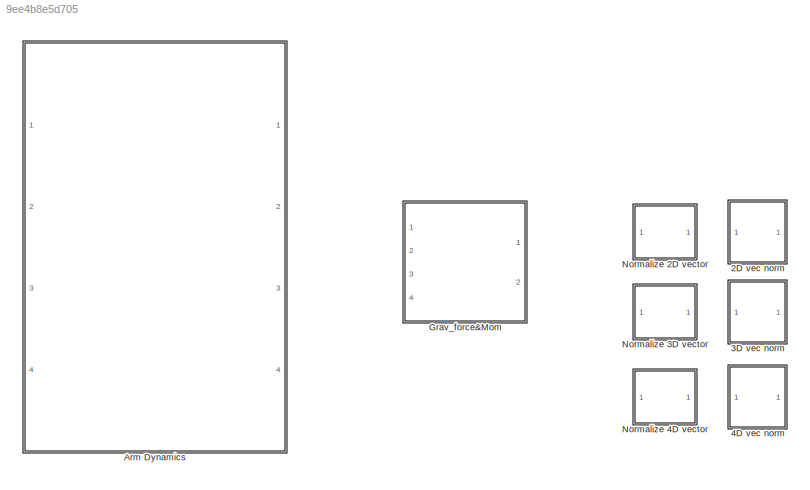
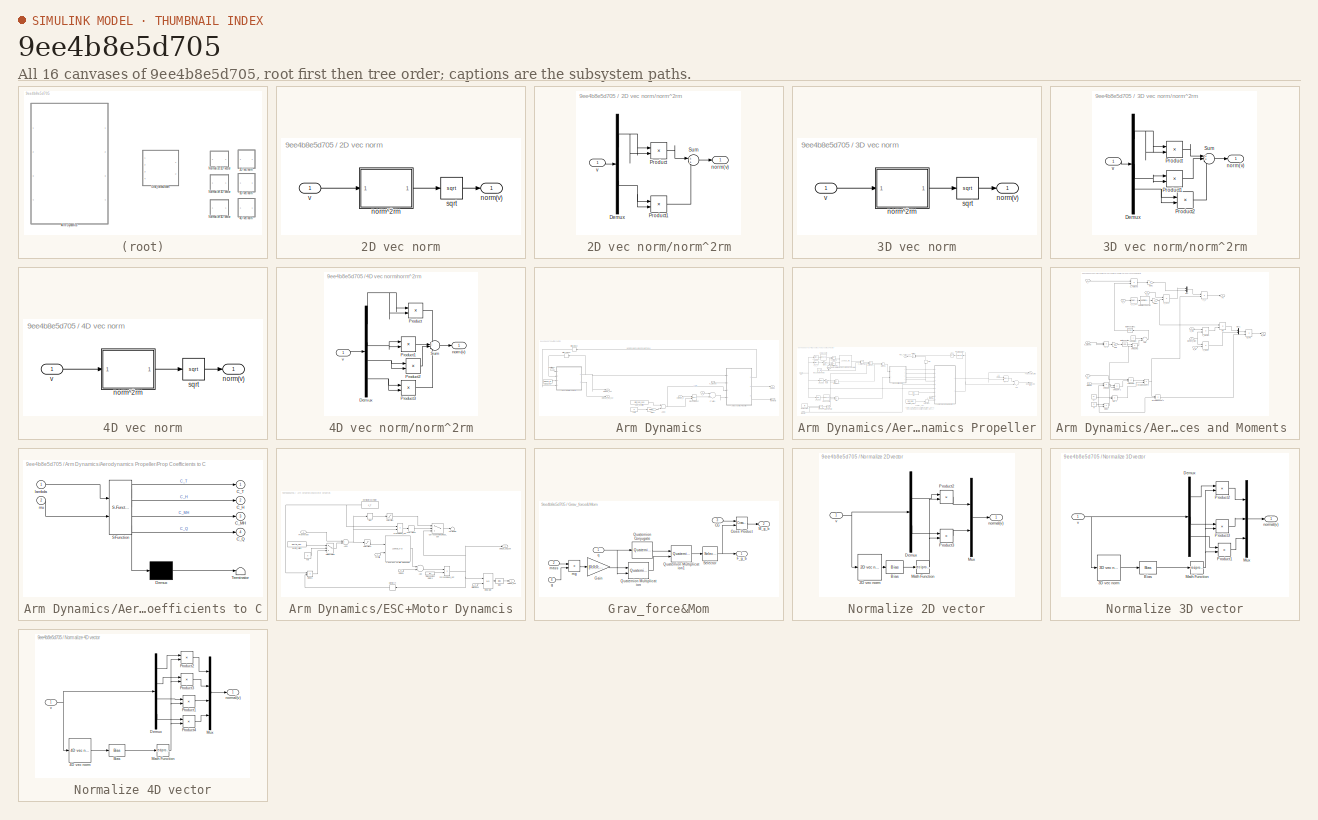
[diagram: thumbnail index - all 16 canvases of the model, root first then tree order]
MODEL slx_9ee4b8e5d705
KIND library
CONFIG AbsTol = auto
CONFIG FixedStep = auto
CONFIG MaxStep = auto
CONFIG MinStep = auto
CONFIG RelTol = 1e-3
CONFIG SampleTimeConstraint = Unconstrained
CONFIG Solver = ode45
CONFIG SolverMode = Auto
CONFIG SolverName = ode45
CONFIG StartTime = 0.0
CONFIG StopTime = 10.0
BLOCK [SubSystem] 2D vec norm
  Ports = [1, 1]
  RequestExecContextInheritance = off
  TreatAsAtomicUnit = on
BLOCK [Outport] 2D vec norm/norm(v)
  IconDisplay = Port number
BLOCK [SubSystem] 2D vec norm/norm^2rm
  Ports = [1, 1]
  RequestExecContextInheritance = off
  TreatAsAtomicUnit = on
BLOCK [Demux] 2D vec norm/norm^2rm/Demux
  DisplayOption = bar
  Outputs = 2
  Ports = [1, 2]
BLOCK [Product] 2D vec norm/norm^2rm/Product
  InputSameDT = off
  OutDataTypeStr = Inherit: Inherit via internal rule
  Ports = [2, 1]
  RndMeth = Floor
  SaturateOnIntegerOverflow = off
BLOCK [Product] 2D vec norm/norm^2rm/Product1
  InputSameDT = off
  OutDataTypeStr = Inherit: Inherit via internal rule
  Ports = [2, 1]
  RndMeth = Floor
  SaturateOnIntegerOverflow = off
BLOCK [Sum] 2D vec norm/norm^2rm/Sum
  IconShape = round
  InputSameDT = off
  Inputs = 2
  OutDataTypeStr = Inherit: Inherit via internal rule
  Ports = [2, 1]
  SaturateOnIntegerOverflow = off
BLOCK [Outport] 2D vec norm/norm^2rm/norm(v)
  IconDisplay = Port number
BLOCK [Inport] 2D vec norm/norm^2rm/v
  IconDisplay = Port number
BLOCK [Sqrt] 2D vec norm/sqrt
  AlgorithmType = Newton-Raphson
BLOCK [Inport] 2D vec norm/v
  IconDisplay = Port number
BLOCK [SubSystem] 3D vec norm
  Ports = [1, 1]
  RequestExecContextInheritance = off
  TreatAsAtomicUnit = on
BLOCK [Outport] 3D vec norm/norm(v)
  IconDisplay = Port number
BLOCK [SubSystem] 3D vec norm/norm^2rm
  Ports = [1, 1]
  RequestExecContextInheritance = off
  TreatAsAtomicUnit = on
BLOCK [Demux] 3D vec norm/norm^2rm/Demux
  DisplayOption = bar
  Outputs = 3
  Ports = [1, 3]
BLOCK [Product] 3D vec norm/norm^2rm/Product
  InputSameDT = off
  OutDataTypeStr = Inherit: Inherit via internal rule
  Ports = [2, 1]
  RndMeth = Floor
  SaturateOnIntegerOverflow = off
BLOCK [Product] 3D vec norm/norm^2rm/Product1
  InputSameDT = off
  OutDataTypeStr = Inherit: Inherit via internal rule
  Ports = [2, 1]
  RndMeth = Floor
  SaturateOnIntegerOverflow = off
BLOCK [Product] 3D vec norm/norm^2rm/Product2
  InputSameDT = off
  OutDataTypeStr = Inherit: Inherit via internal rule
  Ports = [2, 1]
  RndMeth = Floor
  SaturateOnIntegerOverflow = off
BLOCK [Sum] 3D vec norm/norm^2rm/Sum
  IconShape = round
  InputSameDT = off
  Inputs = 3
  OutDataTypeStr = Inherit: Inherit via internal rule
  Ports = [3, 1]
  SaturateOnIntegerOverflow = off
BLOCK [Outport] 3D vec norm/norm^2rm/norm(v)
  IconDisplay = Port number
BLOCK [Inport] 3D vec norm/norm^2rm/v
  IconDisplay = Port number
BLOCK [Sqrt] 3D vec norm/sqrt
  AlgorithmType = Newton-Raphson
BLOCK [Inport] 3D vec norm/v
  IconDisplay = Port number
BLOCK [SubSystem] 4D vec norm
  Ports = [1, 1]
  RequestExecContextInheritance = off
  TreatAsAtomicUnit = on
BLOCK [Outport] 4D vec norm/norm(v)
  IconDisplay = Port number
BLOCK [SubSystem] 4D vec norm/norm^2rm
  Ports = [1, 1]
  RequestExecContextInheritance = off
  TreatAsAtomicUnit = on
BLOCK [Demux] 4D vec norm/norm^2rm/Demux
  DisplayOption = bar
  Ports = [1, 4]
BLOCK [Product] 4D vec norm/norm^2rm/Product
  InputSameDT = off
  OutDataTypeStr = Inherit: Inherit via internal rule
  Ports = [2, 1]
  RndMeth = Floor
  SaturateOnIntegerOverflow = off
BLOCK [Product] 4D vec norm/norm^2rm/Product1
  InputSameDT = off
  OutDataTypeStr = Inherit: Inherit via internal rule
  Ports = [2, 1]
  RndMeth = Floor
  SaturateOnIntegerOverflow = off
BLOCK [Product] 4D vec norm/norm^2rm/Product2
  InputSameDT = off
  OutDataTypeStr = Inherit: Inherit via internal rule
  Ports = [2, 1]
  RndMeth = Floor
  SaturateOnIntegerOverflow = off
BLOCK [Product] 4D vec norm/norm^2rm/Product3
  InputSameDT = off
  OutDataTypeStr = Inherit: Inherit via internal rule
  Ports = [2, 1]
  RndMeth = Floor
  SaturateOnIntegerOverflow = off
BLOCK [Sum] 4D vec norm/norm^2rm/Sum
  IconShape = round
  InputSameDT = off
  Inputs = 4
  OutDataTypeStr = Inherit: Inherit via internal rule
  Ports = [4, 1]
  SaturateOnIntegerOverflow = off
BLOCK [Outport] 4D vec norm/norm^2rm/norm(v)
  IconDisplay = Port number
BLOCK [Inport] 4D vec norm/norm^2rm/v
  IconDisplay = Port number
BLOCK [Sqrt] 4D vec norm/sqrt
  AlgorithmType = Newton-Raphson
BLOCK [Inport] 4D vec norm/v
  IconDisplay = Port number
BLOCK [SubSystem] Arm Dynamics
  Ports = [4, 4]
  RequestExecContextInheritance = off
  TreatAsAtomicUnit = on
BLOCK [Sum] Arm Dynamics/Add3
  InputSameDT = off
  OutDataTypeStr = Inherit: Inherit via internal rule
  Ports = [2, 1]
  SaturateOnIntegerOverflow = off
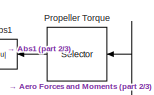
[diagram: Arm Dynamics/Aerodynamics Propeller - part 1/3, top right region]
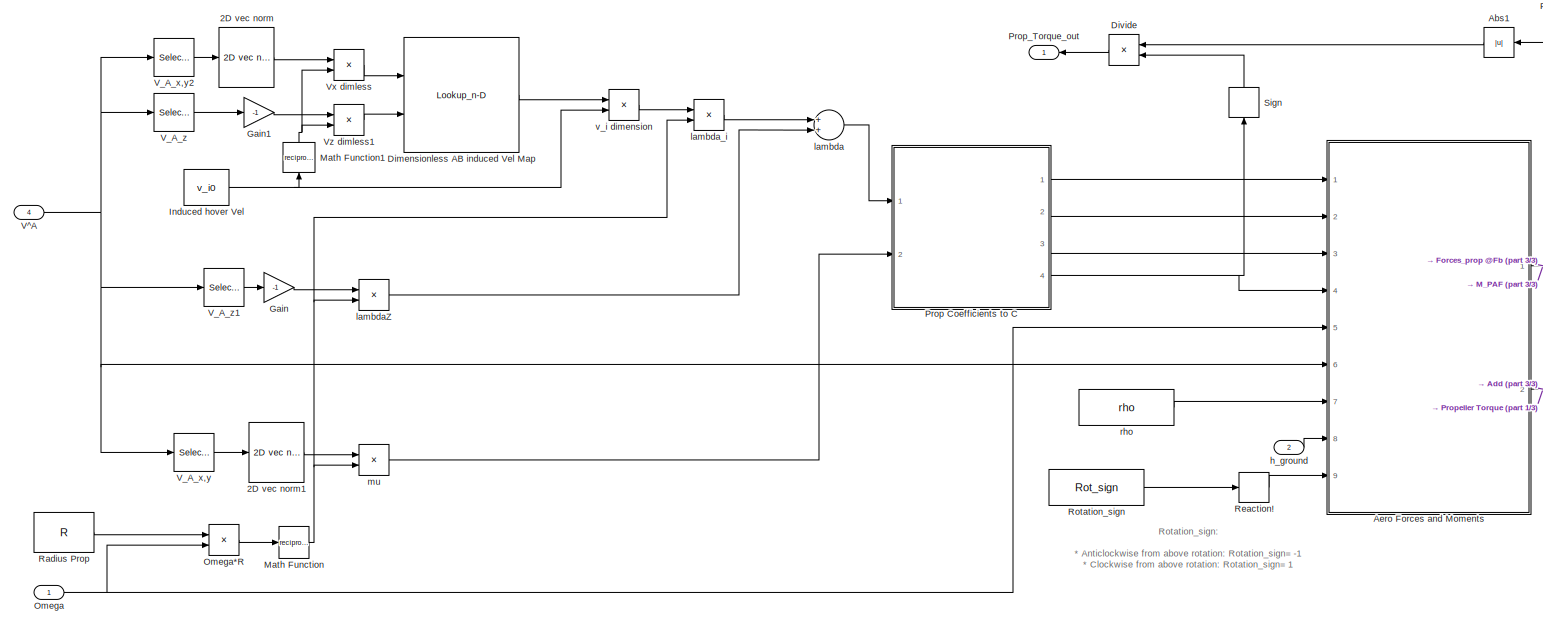
[diagram: Arm Dynamics/Aerodynamics Propeller - part 2/3, center side, full height]
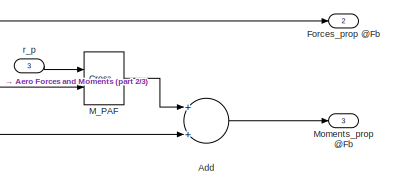
[diagram: Arm Dynamics/Aerodynamics Propeller - part 3/3, middle right region]
BLOCK [SubSystem] Arm Dynamics/Aerodynamics Propeller
  MinAlgLoopOccurrences = on
  Ports = [4, 3]
  RequestExecContextInheritance = off
  TreatAsAtomicUnit = on
BLOCK [Reference] Arm Dynamics/Aerodynamics Propeller/2D vec norm  REF=MCopter/2D vec norm
  Ports = [1, 1]
  SourceBlock = MCopter/2D vec norm
  SourceType = SubSystem
BLOCK [Reference] Arm Dynamics/Aerodynamics Propeller/2D vec norm1  REF=MCopter/2D vec norm
  Ports = [1, 1]
  SourceBlock = MCopter/2D vec norm
  SourceType = SubSystem
BLOCK [Abs] Arm Dynamics/Aerodynamics Propeller/Abs1
  SaturateOnIntegerOverflow = off
BLOCK [Sum] Arm Dynamics/Aerodynamics Propeller/Add
  InputSameDT = off
  OutDataTypeStr = Inherit: Inherit via internal rule
  Ports = [2, 1]
  SaturateOnIntegerOverflow = off
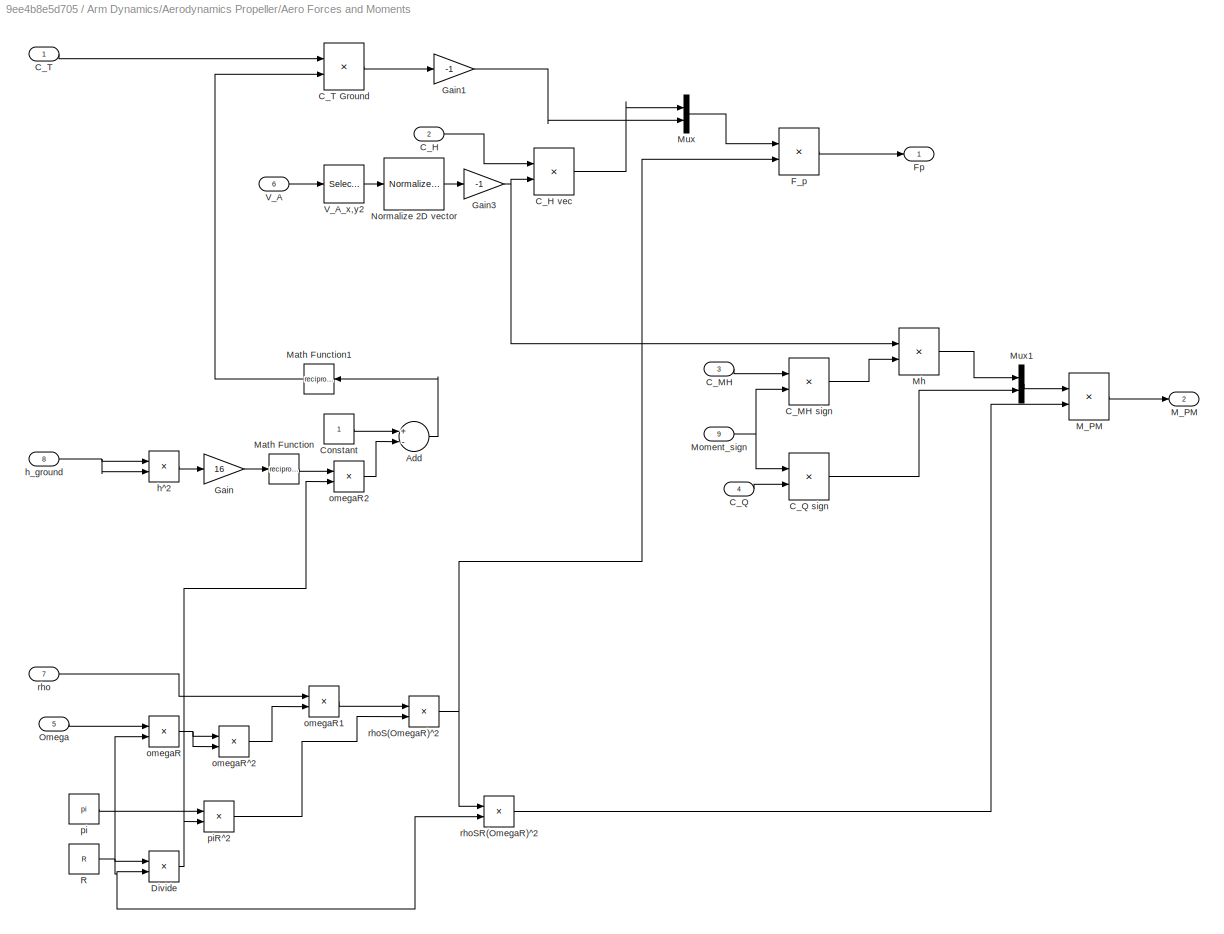
BLOCK [SubSystem] Arm Dynamics/Aerodynamics Propeller/Aero Forces and Moments 
  Ports = [9, 2]
  RequestExecContextInheritance = off
  TreatAsAtomicUnit = on
BLOCK [Sum] Arm Dynamics/Aerodynamics Propeller/Aero Forces and Moments /Add
  InputSameDT = off
  Inputs = +-
  OutDataTypeStr = Inherit: Inherit via internal rule
  Ports = [2, 1]
  SaturateOnIntegerOverflow = off
BLOCK [Inport] Arm Dynamics/Aerodynamics Propeller/Aero Forces and Moments /C_H
  IconDisplay = Port number
  Port = 2
BLOCK [Product] Arm Dynamics/Aerodynamics Propeller/Aero Forces and Moments /C_H vec
  InputSameDT = off
  Inputs = **
  OutDataTypeStr = Inherit: Inherit via internal rule
  Ports = [2, 1]
  RndMeth = Floor
  SaturateOnIntegerOverflow = off
BLOCK [Inport] Arm Dynamics/Aerodynamics Propeller/Aero Forces and Moments /C_MH
  IconDisplay = Port number
  Port = 3
BLOCK [Product] Arm Dynamics/Aerodynamics Propeller/Aero Forces and Moments /C_MH sign
  InputSameDT = off
  Inputs = **
  OutDataTypeStr = Inherit: Inherit via internal rule
  Ports = [2, 1]
  RndMeth = Floor
  SaturateOnIntegerOverflow = off
BLOCK [Inport] Arm Dynamics/Aerodynamics Propeller/Aero Forces and Moments /C_Q
  IconDisplay = Port number
  Port = 4
BLOCK [Product] Arm Dynamics/Aerodynamics Propeller/Aero Forces and Moments /C_Q sign
  InputSameDT = off
  Inputs = **
  OutDataTypeStr = Inherit: Inherit via internal rule
  Ports = [2, 1]
  RndMeth = Floor
  SaturateOnIntegerOverflow = off
BLOCK [Inport] Arm Dynamics/Aerodynamics Propeller/Aero Forces and Moments /C_T
  IconDisplay = Port number
BLOCK [Product] Arm Dynamics/Aerodynamics Propeller/Aero Forces and Moments /C_T Ground
  InputSameDT = off
  Inputs = **
  OutDataTypeStr = Inherit: Inherit via internal rule
  Ports = [2, 1]
  RndMeth = Floor
  SaturateOnIntegerOverflow = off
BLOCK [Constant] Arm Dynamics/Aerodynamics Propeller/Aero Forces and Moments /Constant
BLOCK [Product] Arm Dynamics/Aerodynamics Propeller/Aero Forces and Moments /Divide
  InputSameDT = off
  Inputs = **
  OutDataTypeStr = Inherit: Inherit via internal rule
  Ports = [2, 1]
  RndMeth = Floor
  SaturateOnIntegerOverflow = off
BLOCK [Product] Arm Dynamics/Aerodynamics Propeller/Aero Forces and Moments /F_p
  InputSameDT = off
  Inputs = **
  OutDataTypeStr = Inherit: Inherit via internal rule
  Ports = [2, 1]
  RndMeth = Floor
  SaturateOnIntegerOverflow = off
BLOCK [Outport] Arm Dynamics/Aerodynamics Propeller/Aero Forces and Moments /Fp
  IconDisplay = Port number
BLOCK [Gain] Arm Dynamics/Aerodynamics Propeller/Aero Forces and Moments /Gain
  Gain = 16
  OutDataTypeStr = Inherit: Inherit via internal rule
  ParamDataTypeStr = Inherit: Inherit via internal rule
  SaturateOnIntegerOverflow = off
BLOCK [Gain] Arm Dynamics/Aerodynamics Propeller/Aero Forces and Moments /Gain1
  Gain = -1
  OutDataTypeStr = Inherit: Inherit via internal rule
  ParamDataTypeStr = Inherit: Inherit via internal rule
  SaturateOnIntegerOverflow = off
BLOCK [Gain] Arm Dynamics/Aerodynamics Propeller/Aero Forces and Moments /Gain3
  Gain = -1
  OutDataTypeStr = Inherit: Inherit via internal rule
  ParamDataTypeStr = Inherit: Inherit via internal rule
  SaturateOnIntegerOverflow = off
BLOCK [Product] Arm Dynamics/Aerodynamics Propeller/Aero Forces and Moments /M_PM
  InputSameDT = off
  Inputs = **
  OutDataTypeStr = Inherit: Inherit via internal rule
  Ports = [2, 1]
  RndMeth = Floor
  SaturateOnIntegerOverflow = off
BLOCK [Outport] Arm Dynamics/Aerodynamics Propeller/Aero Forces and Moments /M_PM 
  IconDisplay = Port number
  Port = 2
BLOCK [Math] Arm Dynamics/Aerodynamics Propeller/Aero Forces and Moments /Math Function
  Operator = reciprocal
  Ports = [1, 1]
BLOCK [Math] Arm Dynamics/Aerodynamics Propeller/Aero Forces and Moments /Math Function1
  Operator = reciprocal
  Ports = [1, 1]
BLOCK [Product] Arm Dynamics/Aerodynamics Propeller/Aero Forces and Moments /Mh
  InputSameDT = off
  Inputs = **
  OutDataTypeStr = Inherit: Inherit via internal rule
  Ports = [2, 1]
  RndMeth = Floor
  SaturateOnIntegerOverflow = off
BLOCK [Inport] Arm Dynamics/Aerodynamics Propeller/Aero Forces and Moments /Moment_sign
  IconDisplay = Port number
  Port = 9
BLOCK [Mux] Arm Dynamics/Aerodynamics Propeller/Aero Forces and Moments /Mux
  DisplayOption = bar
  Inputs = [2,1]
  Ports = [2, 1]
BLOCK [Mux] Arm Dynamics/Aerodynamics Propeller/Aero Forces and Moments /Mux1
  DisplayOption = bar
  Inputs = [2,1]
  Ports = [2, 1]
BLOCK [Reference] Arm Dynamics/Aerodynamics Propeller/Aero Forces and Moments /Normalize 2D vector  REF=MCopter/Normalize 2D vector
  Ports = [1, 1]
  SourceBlock = MCopter/Normalize 2D vector
  SourceType = SubSystem
BLOCK [Inport] Arm Dynamics/Aerodynamics Propeller/Aero Forces and Moments /Omega
  IconDisplay = Port number
  Port = 5
BLOCK [Constant] Arm Dynamics/Aerodynamics Propeller/Aero Forces and Moments /R
  Value = R
BLOCK [Inport] Arm Dynamics/Aerodynamics Propeller/Aero Forces and Moments /V_A
  IconDisplay = Port number
  Port = 6
BLOCK [Selector] Arm Dynamics/Aerodynamics Propeller/Aero Forces and Moments /V_A_x,y2
  IndexMode = Zero-based
  Indices = [0,1]
  InputPortWidth = 3
  Ports = [1, 1]
BLOCK [Product] Arm Dynamics/Aerodynamics Propeller/Aero Forces and Moments /h^2
  InputSameDT = off
  Inputs = **
  OutDataTypeStr = Inherit: Inherit via internal rule
  Ports = [2, 1]
  RndMeth = Floor
  SaturateOnIntegerOverflow = off
BLOCK [Inport] Arm Dynamics/Aerodynamics Propeller/Aero Forces and Moments /h_ground
  IconDisplay = Port number
  Port = 8
BLOCK [Product] Arm Dynamics/Aerodynamics Propeller/Aero Forces and Moments /omegaR
  InputSameDT = off
  Inputs = **
  OutDataTypeStr = Inherit: Inherit via internal rule
  Ports = [2, 1]
  RndMeth = Floor
  SaturateOnIntegerOverflow = off
BLOCK [Product] Arm Dynamics/Aerodynamics Propeller/Aero Forces and Moments /omegaR1
  InputSameDT = off
  Inputs = **
  OutDataTypeStr = Inherit: Inherit via internal rule
  Ports = [2, 1]
  RndMeth = Floor
  SaturateOnIntegerOverflow = off
BLOCK [Product] Arm Dynamics/Aerodynamics Propeller/Aero Forces and Moments /omegaR2
  InputSameDT = off
  Inputs = **
  OutDataTypeStr = Inherit: Inherit via internal rule
  Ports = [2, 1]
  RndMeth = Floor
  SaturateOnIntegerOverflow = off
BLOCK [Product] Arm Dynamics/Aerodynamics Propeller/Aero Forces and Moments /omegaR^2
  InputSameDT = off
  Inputs = **
  OutDataTypeStr = Inherit: Inherit via internal rule
  Ports = [2, 1]
  RndMeth = Floor
  SaturateOnIntegerOverflow = off
BLOCK [Constant] Arm Dynamics/Aerodynamics Propeller/Aero Forces and Moments /pi
  Value = pi
BLOCK [Product] Arm Dynamics/Aerodynamics Propeller/Aero Forces and Moments /piR^2
  InputSameDT = off
  Inputs = **
  OutDataTypeStr = Inherit: Inherit via internal rule
  Ports = [2, 1]
  RndMeth = Floor
  SaturateOnIntegerOverflow = off
BLOCK [Inport] Arm Dynamics/Aerodynamics Propeller/Aero Forces and Moments /rho
  IconDisplay = Port number
  Port = 7
BLOCK [Product] Arm Dynamics/Aerodynamics Propeller/Aero Forces and Moments /rhoS(OmegaR)^2
  InputSameDT = off
  Inputs = **
  OutDataTypeStr = Inherit: Inherit via internal rule
  Ports = [2, 1]
  RndMeth = Floor
  SaturateOnIntegerOverflow = off
BLOCK [Product] Arm Dynamics/Aerodynamics Propeller/Aero Forces and Moments /rhoSR(OmegaR)^2
  InputSameDT = off
  Inputs = **
  OutDataTypeStr = Inherit: Inherit via internal rule
  Ports = [2, 1]
  RndMeth = Floor
  SaturateOnIntegerOverflow = off
BLOCK [Lookup_n-D] Arm Dynamics/Aerodynamics Propeller/Dimensionless AB induced Vel Map
  BreakpointsForDimension1 = Vx_adim
  BreakpointsForDimension2 = Vz_adim
  BreakpointsForDimension3 = [5, 7]
  ExtrapMethod = Clip
  FractionDataTypeStr = single
  IntermediateResultsDataTypeStr = single
  OutDataTypeStr = single
  Ports = [2, 1]
  RemoveProtectionInput = on
  RndMeth = Zero
  Table = v_i_adim
  TableDataTypeStr = single
BLOCK [Product] Arm Dynamics/Aerodynamics Propeller/Divide
  InputSameDT = off
  Inputs = **
  OutDataTypeStr = Inherit: Inherit via internal rule
  Ports = [2, 1]
  RndMeth = Floor
  SaturateOnIntegerOverflow = off
BLOCK [Outport] Arm Dynamics/Aerodynamics Propeller/Forces_prop @Fb
  IconDisplay = Port number
  Port = 2
BLOCK [Gain] Arm Dynamics/Aerodynamics Propeller/Gain
  Gain = -1
  OutDataTypeStr = Inherit: Inherit via internal rule
  ParamDataTypeStr = Inherit: Inherit via internal rule
  SaturateOnIntegerOverflow = off
BLOCK [Gain] Arm Dynamics/Aerodynamics Propeller/Gain1
  Gain = -1
  OutDataTypeStr = Inherit: Inherit via internal rule
  ParamDataTypeStr = Inherit: Inherit via internal rule
  SaturateOnIntegerOverflow = off
BLOCK [Constant] Arm Dynamics/Aerodynamics Propeller/Induced hover Vel
  Value = v_i0
BLOCK [Reference] Arm Dynamics/Aerodynamics Propeller/M_PAF  REF=vrlib/Utilities/Cross Product
  Ports = [2, 1]
  SourceBlock = vrlib/Utilities/Cross Product
  SourceType = Cross Product
BLOCK [Math] Arm Dynamics/Aerodynamics Propeller/Math Function
  Operator = reciprocal
  Ports = [1, 1]
BLOCK [Math] Arm Dynamics/Aerodynamics Propeller/Math Function1
  Operator = reciprocal
  Ports = [1, 1]
BLOCK [Outport] Arm Dynamics/Aerodynamics Propeller/Moments_prop @Fb
  IconDisplay = Port number
  Port = 3
BLOCK [Inport] Arm Dynamics/Aerodynamics Propeller/Omega
  IconDisplay = Port number
BLOCK [Product] Arm Dynamics/Aerodynamics Propeller/Omega*R
  InputSameDT = off
  Inputs = **
  OutDataTypeStr = Inherit: Inherit via internal rule
  Ports = [2, 1]
  RndMeth = Floor
  SaturateOnIntegerOverflow = off
BLOCK [SubSystem] Arm Dynamics/Aerodynamics Propeller/Prop Coefficients to C
  ErrorFcn = Stateflow.Translate.translate
  PermitHierarchicalResolution = ExplicitOnly
  Ports = [2, 4]
  RequestExecContextInheritance = off
  SFBlockType = MATLAB Function
  TreatAsAtomicUnit = on
BLOCK [Demux] Arm Dynamics/Aerodynamics Propeller/Prop Coefficients to C/ Demux 
  Outputs = 1
  Ports = [1, 1]
BLOCK [S-Function] Arm Dynamics/Aerodynamics Propeller/Prop Coefficients to C/ SFunction 
  FunctionName = sf_sfun
  Parameters = C_d0,a,sigma,theta_0,theta_1
  PortCounts = [2 5]
  Ports = [2, 5]
  Tag = Stateflow S-Function MCopter 17
BLOCK [Terminator] Arm Dynamics/Aerodynamics Propeller/Prop Coefficients to C/ Terminator 
BLOCK [Outport] Arm Dynamics/Aerodynamics Propeller/Prop Coefficients to C/C_H
  IconDisplay = Port number
  Port = 2
BLOCK [Outport] Arm Dynamics/Aerodynamics Propeller/Prop Coefficients to C/C_MH
  IconDisplay = Port number
  Port = 3
BLOCK [Outport] Arm Dynamics/Aerodynamics Propeller/Prop Coefficients to C/C_Q
  IconDisplay = Port number
  Port = 4
BLOCK [Outport] Arm Dynamics/Aerodynamics Propeller/Prop Coefficients to C/C_T
  IconDisplay = Port number
BLOCK [Inport] Arm Dynamics/Aerodynamics Propeller/Prop Coefficients to C/lambda
  IconDisplay = Port number
BLOCK [Inport] Arm Dynamics/Aerodynamics Propeller/Prop Coefficients to C/mu
  IconDisplay = Port number
  Port = 2
BLOCK [Outport] Arm Dynamics/Aerodynamics Propeller/Prop_Torque_out
  IconDisplay = Port number
BLOCK [Selector] Arm Dynamics/Aerodynamics Propeller/Propeller Torque
  IndexMode = Zero-based
  Indices = 2
  InputPortWidth = 3
  Ports = [1, 1]
BLOCK [Constant] Arm Dynamics/Aerodynamics Propeller/Radius Prop
  Value = R
BLOCK [UnaryMinus] Arm Dynamics/Aerodynamics Propeller/Reaction!
BLOCK [Constant] Arm Dynamics/Aerodynamics Propeller/Rotation_sign
  Value = Rot_sign
BLOCK [Signum] Arm Dynamics/Aerodynamics Propeller/Sign
BLOCK [Inport] Arm Dynamics/Aerodynamics Propeller/V^A
  IconDisplay = Port number
  Port = 4
BLOCK [Selector] Arm Dynamics/Aerodynamics Propeller/V_A_x,y
  IndexMode = Zero-based
  Indices = [0,1]
  InputPortWidth = 3
  Ports = [1, 1]
BLOCK [Selector] Arm Dynamics/Aerodynamics Propeller/V_A_x,y2
  IndexMode = Zero-based
  Indices = [0,1]
  InputPortWidth = 3
  Ports = [1, 1]
BLOCK [Selector] Arm Dynamics/Aerodynamics Propeller/V_A_z
  IndexMode = Zero-based
  Indices = 2
  InputPortWidth = 3
  Ports = [1, 1]
BLOCK [Selector] Arm Dynamics/Aerodynamics Propeller/V_A_z1
  IndexMode = Zero-based
  Indices = 2
  InputPortWidth = 3
  Ports = [1, 1]
BLOCK [Product] Arm Dynamics/Aerodynamics Propeller/Vx dimless
  InputSameDT = off
  Inputs = **
  OutDataTypeStr = Inherit: Inherit via internal rule
  Ports = [2, 1]
  RndMeth = Floor
  SaturateOnIntegerOverflow = off
BLOCK [Product] Arm Dynamics/Aerodynamics Propeller/Vz dimless1
  InputSameDT = off
  Inputs = **
  OutDataTypeStr = Inherit: Inherit via internal rule
  Ports = [2, 1]
  RndMeth = Floor
  SaturateOnIntegerOverflow = off
BLOCK [Inport] Arm Dynamics/Aerodynamics Propeller/h_ground
  IconDisplay = Port number
  Port = 2
BLOCK [Sum] Arm Dynamics/Aerodynamics Propeller/lambda
  InputSameDT = off
  OutDataTypeStr = Inherit: Inherit via internal rule
  Ports = [2, 1]
  SaturateOnIntegerOverflow = off
BLOCK [Product] Arm Dynamics/Aerodynamics Propeller/lambdaZ
  InputSameDT = off
  Inputs = **
  OutDataTypeStr = Inherit: Inherit via internal rule
  Ports = [2, 1]
  RndMeth = Floor
  SaturateOnIntegerOverflow = off
BLOCK [Product] Arm Dynamics/Aerodynamics Propeller/lambda_i
  InputSameDT = off
  Inputs = **
  OutDataTypeStr = Inherit: Inherit via internal rule
  Ports = [2, 1]
  RndMeth = Floor
  SaturateOnIntegerOverflow = off
BLOCK [Product] Arm Dynamics/Aerodynamics Propeller/mu
  InputSameDT = off
  Inputs = **
  OutDataTypeStr = Inherit: Inherit via internal rule
  Ports = [2, 1]
  RndMeth = Floor
  SaturateOnIntegerOverflow = off
BLOCK [Inport] Arm Dynamics/Aerodynamics Propeller/r_p
  IconDisplay = Port number
  Port = 3
BLOCK [Constant] Arm Dynamics/Aerodynamics Propeller/rho
  Value = rho
BLOCK [Product] Arm Dynamics/Aerodynamics Propeller/v_i dimension
  InputSameDT = off
  Inputs = **
  OutDataTypeStr = Inherit: Inherit via internal rule
  Ports = [2, 1]
  RndMeth = Floor
  SaturateOnIntegerOverflow = off
BLOCK [Reference] Arm Dynamics/Cross Product  REF=vrlib/Utilities/Cross Product
  Ports = [2, 1]
  SourceBlock = vrlib/Utilities/Cross Product
  SourceType = Cross Product
BLOCK [SubSystem] Arm Dynamics/ESC+Motor Dynamcis
  Ports = [4, 2]
  RequestExecContextInheritance = off
  TreatAsAtomicUnit = on
  VariantControl = Variant_completed
BLOCK [Lookup_n-D] Arm Dynamics/ESC+Motor Dynamcis/2-D Torque-Throttle-Omega Map
  BreakpointsForDimension1 = Torque_TTO(:,1)
  BreakpointsForDimension2 = Throtle_TTO(1,:)
  DiagnosticForOutOfRangeInput = Warning
  ExtrapMethod = Clip
  Ports = [2, 1]
  RemoveProtectionInput = on
  RndMeth = Simplest
  Table = Omega_TTO
BLOCK [Sum] Arm Dynamics/ESC+Motor Dynamcis/Add
  InputSameDT = off
  Inputs = +-
  OutDataTypeStr = Inherit: Inherit via internal rule
  Ports = [2, 1]
  SaturateOnIntegerOverflow = off
BLOCK [Sum] Arm Dynamics/ESC+Motor Dynamcis/Add1
  InputSameDT = off
  OutDataTypeStr = Inherit: Inherit via internal rule
  Ports = [2, 1]
  SaturateOnIntegerOverflow = off
BLOCK [Bias] Arm Dynamics/ESC+Motor Dynamcis/Bias
  Bias = eps
  SaturateOnIntegerOverflow = off
BLOCK [MultiPortSwitch] Arm Dynamics/ESC+Motor Dynamcis/Correspondetn Omega_dot
  DataPortOrder = Zero-based contiguous
  InputSameDT = off
  Inputs = 2
  Ports = [3, 1]
  SaturateOnIntegerOverflow = off
BLOCK [Product] Arm Dynamics/ESC+Motor Dynamcis/Divide1
  InputSameDT = off
  Inputs = **
  OutDataTypeStr = Inherit: Inherit via internal rule
  Ports = [2, 1]
  RndMeth = Floor
  SaturateOnIntegerOverflow = off
BLOCK [Product] Arm Dynamics/ESC+Motor Dynamcis/Forced Omega_dot
  InputSameDT = off
  Inputs = */
  OutDataTypeStr = Inherit: Inherit via internal rule
  Ports = [2, 1]
  RndMeth = Floor
  SaturateOnIntegerOverflow = off
BLOCK [Product] Arm Dynamics/ESC+Motor Dynamcis/Free Omega_dot
  InputSameDT = off
  Inputs = /*
  OutDataTypeStr = Inherit: Inherit via internal rule
  Ports = [2, 1]
  RndMeth = Floor
  SaturateOnIntegerOverflow = off
BLOCK [Constant] Arm Dynamics/ESC+Motor Dynamcis/Inertia of prop+motor
  Value = J_T
BLOCK [Inport] Arm Dynamics/ESC+Motor Dynamcis/Initial Omega
  IconDisplay = Port number
  Port = 3
BLOCK [Integrator] Arm Dynamics/ESC+Motor Dynamcis/Integrator
  InitialConditionSource = external
  Ports = [2, 1]
BLOCK [Memory] Arm Dynamics/ESC+Motor Dynamcis/Memory4
BLOCK [MultiPortSwitch] Arm Dynamics/ESC+Motor Dynamcis/Multiport Switch
  InputSameDT = off
  Inputs = 2
  Ports = [3, 1]
  SaturateOnIntegerOverflow = off
BLOCK [Inport] Arm Dynamics/ESC+Motor Dynamcis/Omega
  IconDisplay = Port number
  Port = 2
BLOCK [Outport] Arm Dynamics/ESC+Motor Dynamcis/Omega_dot_out
  IconDisplay = Port number
  Port = 2
BLOCK [Outport] Arm Dynamics/ESC+Motor Dynamcis/Omega_out
  IconDisplay = Port number
BLOCK [Inport] Arm Dynamics/ESC+Motor Dynamcis/Prop Torque
  IconDisplay = Port number
  Port = 4
BLOCK [Saturate] Arm Dynamics/ESC+Motor Dynamcis/Saturation
  InputPortMap = u0
  LowerLimit = 0
  Ports = [1, 1]
  UpperLimit = 1
BLOCK [Saturate] Arm Dynamics/ESC+Motor Dynamcis/Saturation1
  InputPortMap = u0
  LowerLimit = 0
  Ports = [1, 1]
  UpperLimit = inf
BLOCK [Signum] Arm Dynamics/ESC+Motor Dynamcis/Sign
BLOCK [Terminator] Arm Dynamics/ESC+Motor Dynamcis/Terminator
BLOCK [Inport] Arm Dynamics/ESC+Motor Dynamcis/Throttle
  IconDisplay = Port number
BLOCK [Constant] Arm Dynamics/ESC+Motor Dynamcis/Time constant motors
  Value = tau
BLOCK [UnaryMinus] Arm Dynamics/ESC+Motor Dynamcis/Unary Minus
BLOCK [Constant] Arm Dynamics/ESC+Motor Dynamcis/inertia_switch
  Value = inertia_switch
BLOCK [Constant] Arm Dynamics/ESC+Motor Dynamcis/null
  Value = 0
BLOCK [Outport] Arm Dynamics/Forces
  IconDisplay = Port number
BLOCK [Gain] Arm Dynamics/Gain7
  Gain = [0;0;-1]
  OutDataTypeStr = Inherit: Inherit via internal rule
  ParamDataTypeStr = Inherit: Inherit via internal rule
  SaturateOnIntegerOverflow = off
BLOCK [Constant] Arm Dynamics/Hub_position
  Value = arm_hub_pos
BLOCK [Memory] Arm Dynamics/Initial_torque
  X0 = Torq_ini
BLOCK [Outport] Arm Dynamics/Moments
  IconDisplay = Port number
  Port = 2
BLOCK [Outport] Arm Dynamics/Omega_dot_out
  IconDisplay = Port number
  Port = 4
BLOCK [Outport] Arm Dynamics/Omega_out
  IconDisplay = Port number
  Port = 3
BLOCK [Inport] Arm Dynamics/Throttle [0-1]
  IconDisplay = Port number
BLOCK [Sum] Arm Dynamics/V^A (m//s)
  InputSameDT = off
  OutDataTypeStr = Inherit: Inherit via internal rule
  Ports = [2, 1]
  SaturateOnIntegerOverflow = off
BLOCK [Inport] Arm Dynamics/V_b
  IconDisplay = Port number
  Port = 4
BLOCK [Constant] Arm Dynamics/h arm
  Value = h
BLOCK [Inport] Arm Dynamics/h_ground
  IconDisplay = Port number
  Port = 2
BLOCK [Memory] Arm Dynamics/initial_omega
  X0 = Omega_ini
BLOCK [Inport] Arm Dynamics/omega_b
  IconDisplay = Port number
  Port = 3
BLOCK [Constant] Arm Dynamics/omega_ini
  Value = Omega_ini
BLOCK [SubSystem] Grav_force&Mom
  Ports = [4, 2]
  RequestExecContextInheritance = off
  TreatAsAtomicUnit = on
BLOCK [Inport] Grav_force&Mom/CG
  IconDisplay = Port number
  Port = 3
BLOCK [Reference] Grav_force&Mom/Cross Product  REF=vrlib/Utilities/Cross Product
  Ports = [2, 1]
  SourceBlock = vrlib/Utilities/Cross Product
  SourceType = Cross Product
BLOCK [Outport] Grav_force&Mom/F_g_b
  IconDisplay = Port number
BLOCK [Gain] Grav_force&Mom/Gain
  Gain = [0;0;0;1]
  OutDataTypeStr = Inherit: Inherit via internal rule
  ParamDataTypeStr = Inherit: Inherit via internal rule
  SaturateOnIntegerOverflow = off
BLOCK [Outport] Grav_force&Mom/M_g_b
  IconDisplay = Port number
  Port = 2
BLOCK [Reference] Grav_force&Mom/Quaternion Conjugate  REF=aerolibutil/Quaternion
Conjugate
  Ports = [1, 1]
  SourceBlock = aerolibutil/Quaternion\nConjugate
  SourceType = Quaternion Conjugate
BLOCK [Reference] Grav_force&Mom/Quaternion Multiplication  REF=aerolibutil/Quaternion
Multiplication
  Ports = [2, 1]
  SourceBlock = aerolibutil/Quaternion\nMultiplication
  SourceType = Quaternion Multiplication
BLOCK [Reference] Grav_force&Mom/Quaternion Multiplication1  REF=aerolibutil/Quaternion
Multiplication
  Ports = [2, 1]
  SourceBlock = aerolibutil/Quaternion\nMultiplication
  SourceType = Quaternion Multiplication
BLOCK [Selector] Grav_force&Mom/Selector
  IndexMode = Zero-based
  Indices = [1:3]
  InputPortWidth = 4
  Ports = [1, 1]
BLOCK [Inport] Grav_force&Mom/g
  IconDisplay = Port number
  Port = 4
BLOCK [Inport] Grav_force&Mom/mass
  IconDisplay = Port number
  Port = 2
BLOCK [Product] Grav_force&Mom/mg
  InputSameDT = off
  OutDataTypeStr = Inherit: Inherit via internal rule
  Ports = [2, 1]
  SaturateOnIntegerOverflow = off
BLOCK [Inport] Grav_force&Mom/q
  IconDisplay = Port number
BLOCK [SubSystem] Normalize 2D vector
  Ports = [1, 1]
  RequestExecContextInheritance = off
  TreatAsAtomicUnit = on
BLOCK [Reference] Normalize 2D vector/2D vec norm  REF=MCopter/2D vec norm
  Ports = [1, 1]
  SourceBlock = MCopter/2D vec norm
  SourceType = SubSystem
BLOCK [Bias] Normalize 2D vector/Bias
  Bias = eps
  SaturateOnIntegerOverflow = off
BLOCK [Demux] Normalize 2D vector/Demux
  DisplayOption = bar
  Outputs = 2
  Ports = [1, 2]
BLOCK [Math] Normalize 2D vector/Math Function
  Operator = reciprocal
  Ports = [1, 1]
BLOCK [Mux] Normalize 2D vector/Mux
  DisplayOption = bar
  Inputs = 2
  Ports = [2, 1]
BLOCK [Product] Normalize 2D vector/Product2
  InputSameDT = off
  Inputs = **
  OutDataTypeStr = Inherit: Inherit via internal rule
  Ports = [2, 1]
  RndMeth = Floor
  SaturateOnIntegerOverflow = off
BLOCK [Product] Normalize 2D vector/Product3
  InputSameDT = off
  Inputs = **
  OutDataTypeStr = Inherit: Inherit via internal rule
  Ports = [2, 1]
  RndMeth = Floor
  SaturateOnIntegerOverflow = off
BLOCK [Outport] Normalize 2D vector/normal(v)
  IconDisplay = Port number
BLOCK [Inport] Normalize 2D vector/v
  IconDisplay = Port number
BLOCK [SubSystem] Normalize 3D vector
  Ports = [1, 1]
  RequestExecContextInheritance = off
  TreatAsAtomicUnit = on
BLOCK [Reference] Normalize 3D vector/3D vec norm  REF=MCopter/3D vec norm
  Ports = [1, 1]
  SourceBlock = MCopter/3D vec norm
  SourceType = SubSystem
BLOCK [Bias] Normalize 3D vector/Bias
  Bias = eps
  SaturateOnIntegerOverflow = off
BLOCK [Demux] Normalize 3D vector/Demux
  DisplayOption = bar
  Outputs = 3
  Ports = [1, 3]
BLOCK [Math] Normalize 3D vector/Math Function
  Operator = reciprocal
  Ports = [1, 1]
BLOCK [Mux] Normalize 3D vector/Mux
  DisplayOption = bar
  Inputs = 3
  Ports = [3, 1]
BLOCK [Product] Normalize 3D vector/Product1
  InputSameDT = off
  Inputs = **
  OutDataTypeStr = Inherit: Inherit via internal rule
  Ports = [2, 1]
  RndMeth = Floor
  SaturateOnIntegerOverflow = off
BLOCK [Product] Normalize 3D vector/Product2
  InputSameDT = off
  Inputs = **
  OutDataTypeStr = Inherit: Inherit via internal rule
  Ports = [2, 1]
  RndMeth = Floor
  SaturateOnIntegerOverflow = off
BLOCK [Product] Normalize 3D vector/Product3
  InputSameDT = off
  Inputs = **
  OutDataTypeStr = Inherit: Inherit via internal rule
  Ports = [2, 1]
  RndMeth = Floor
  SaturateOnIntegerOverflow = off
BLOCK [Outport] Normalize 3D vector/normal(v)
  IconDisplay = Port number
BLOCK [Inport] Normalize 3D vector/v
  IconDisplay = Port number
BLOCK [SubSystem] Normalize 4D vector
  Ports = [1, 1]
  RequestExecContextInheritance = off
  TreatAsAtomicUnit = on
BLOCK [Reference] Normalize 4D vector/4D vec norm  REF=MCopter/4D vec norm
  Ports = [1, 1]
  SourceBlock = MCopter/4D vec norm
  SourceType = SubSystem
BLOCK [Bias] Normalize 4D vector/Bias
  Bias = eps
  SaturateOnIntegerOverflow = off
BLOCK [Demux] Normalize 4D vector/Demux
  DisplayOption = bar
  Ports = [1, 4]
BLOCK [Math] Normalize 4D vector/Math Function
  Operator = reciprocal
  Ports = [1, 1]
BLOCK [Mux] Normalize 4D vector/Mux
  DisplayOption = bar
  Ports = [4, 1]
BLOCK [Product] Normalize 4D vector/Product1
  InputSameDT = off
  Inputs = **
  OutDataTypeStr = Inherit: Inherit via internal rule
  Ports = [2, 1]
  RndMeth = Floor
  SaturateOnIntegerOverflow = off
BLOCK [Product] Normalize 4D vector/Product2
  InputSameDT = off
  Inputs = **
  OutDataTypeStr = Inherit: Inherit via internal rule
  Ports = [2, 1]
  RndMeth = Floor
  SaturateOnIntegerOverflow = off
BLOCK [Product] Normalize 4D vector/Product3
  InputSameDT = off
  Inputs = **
  OutDataTypeStr = Inherit: Inherit via internal rule
  Ports = [2, 1]
  RndMeth = Floor
  SaturateOnIntegerOverflow = off
BLOCK [Product] Normalize 4D vector/Product4
  InputSameDT = off
  Inputs = **
  OutDataTypeStr = Inherit: Inherit via internal rule
  Ports = [2, 1]
  RndMeth = Floor
  SaturateOnIntegerOverflow = off
BLOCK [Outport] Normalize 4D vector/normal(v)
  IconDisplay = Port number
BLOCK [Inport] Normalize 4D vector/v
  IconDisplay = Port number
ANNOTATION Arm Dynamics: Motor-Propeller Coupling: Propeller Torque
ANNOTATION Arm Dynamics/Aerodynamics Propeller: Rotation_sign: * Anticlockwise from above rotation: Rotation_sign= -1 * Clockwise from above rotation: Rotation_sign= 1
NET 2D vec norm/norm^2rm/Demux:1 -> 2D vec norm/norm^2rm/Product:1, 2D vec norm/norm^2rm/Product:2
NET 2D vec norm/norm^2rm/Demux:2 -> 2D vec norm/norm^2rm/Product1:1, 2D vec norm/norm^2rm/Product1:2
LINE 2D vec norm/norm^2rm/Product1:1 -> 2D vec norm/norm^2rm/Sum:2
LINE 2D vec norm/norm^2rm/Product:1 -> 2D vec norm/norm^2rm/Sum:1
LINE 2D vec norm/norm^2rm/Sum:1 -> 2D vec norm/norm^2rm/norm(v):1
LINE 2D vec norm/norm^2rm/v:1 -> 2D vec norm/norm^2rm/Demux:1
LINE 2D vec norm/norm^2rm:1 -> 2D vec norm/sqrt:1
LINE 2D vec norm/sqrt:1 -> 2D vec norm/norm(v):1
LINE 2D vec norm/v:1 -> 2D vec norm/norm^2rm:1
NET 3D vec norm/norm^2rm/Demux:1 -> 3D vec norm/norm^2rm/Product:1, 3D vec norm/norm^2rm/Product:2
NET 3D vec norm/norm^2rm/Demux:2 -> 3D vec norm/norm^2rm/Product1:1, 3D vec norm/norm^2rm/Product1:2
NET 3D vec norm/norm^2rm/Demux:3 -> 3D vec norm/norm^2rm/Product2:1, 3D vec norm/norm^2rm/Product2:2
LINE 3D vec norm/norm^2rm/Product1:1 -> 3D vec norm/norm^2rm/Sum:2
LINE 3D vec norm/norm^2rm/Product2:1 -> 3D vec norm/norm^2rm/Sum:3
LINE 3D vec norm/norm^2rm/Product:1 -> 3D vec norm/norm^2rm/Sum:1
LINE 3D vec norm/norm^2rm/Sum:1 -> 3D vec norm/norm^2rm/norm(v):1
LINE 3D vec norm/norm^2rm/v:1 -> 3D vec norm/norm^2rm/Demux:1
LINE 3D vec norm/norm^2rm:1 -> 3D vec norm/sqrt:1
LINE 3D vec norm/sqrt:1 -> 3D vec norm/norm(v):1
LINE 3D vec norm/v:1 -> 3D vec norm/norm^2rm:1
NET 4D vec norm/norm^2rm/Demux:1 -> 4D vec norm/norm^2rm/Product:1, 4D vec norm/norm^2rm/Product:2
NET 4D vec norm/norm^2rm/Demux:2 -> 4D vec norm/norm^2rm/Product1:1, 4D vec norm/norm^2rm/Product1:2
NET 4D vec norm/norm^2rm/Demux:3 -> 4D vec norm/norm^2rm/Product2:1, 4D vec norm/norm^2rm/Product2:2
NET 4D vec norm/norm^2rm/Demux:4 -> 4D vec norm/norm^2rm/Product3:1, 4D vec norm/norm^2rm/Product3:2
LINE 4D vec norm/norm^2rm/Product1:1 -> 4D vec norm/norm^2rm/Sum:2
LINE 4D vec norm/norm^2rm/Product2:1 -> 4D vec norm/norm^2rm/Sum:3
LINE 4D vec norm/norm^2rm/Product3:1 -> 4D vec norm/norm^2rm/Sum:4
LINE 4D vec norm/norm^2rm/Product:1 -> 4D vec norm/norm^2rm/Sum:1
LINE 4D vec norm/norm^2rm/Sum:1 -> 4D vec norm/norm^2rm/norm(v):1
LINE 4D vec norm/norm^2rm/v:1 -> 4D vec norm/norm^2rm/Demux:1
LINE 4D vec norm/norm^2rm:1 -> 4D vec norm/sqrt:1
LINE 4D vec norm/sqrt:1 -> 4D vec norm/norm(v):1
LINE 4D vec norm/v:1 -> 4D vec norm/norm^2rm:1
NET Arm Dynamics/Add3:1 -> Arm Dynamics/Aerodynamics Propeller:3, Arm Dynamics/Cross Product:2
LINE Arm Dynamics/Aerodynamics Propeller/2D vec norm1:1 -> Arm Dynamics/Aerodynamics Propeller/mu:1
LINE Arm Dynamics/Aerodynamics Propeller/2D vec norm:1 -> Arm Dynamics/Aerodynamics Propeller/Vx dimless:1
LINE Arm Dynamics/Aerodynamics Propeller/Abs1:1 -> Arm Dynamics/Aerodynamics Propeller/Divide:1
LINE Arm Dynamics/Aerodynamics Propeller/Add:1 -> Arm Dynamics/Aerodynamics Propeller/Moments_prop @Fb:1
LINE Arm Dynamics/Aerodynamics Propeller/Aero Forces and Moments /Add:1 -> Arm Dynamics/Aerodynamics Propeller/Aero Forces and Moments /Math Function1:1
LINE Arm Dynamics/Aerodynamics Propeller/Aero Forces and Moments /C_H vec:1 -> Arm Dynamics/Aerodynamics Propeller/Aero Forces and Moments /Mux:1
LINE Arm Dynamics/Aerodynamics Propeller/Aero Forces and Moments /C_H:1 -> Arm Dynamics/Aerodynamics Propeller/Aero Forces and Moments /C_H vec:1
LINE Arm Dynamics/Aerodynamics Propeller/Aero Forces and Moments /C_MH sign:1 -> Arm Dynamics/Aerodynamics Propeller/Aero Forces and Moments /Mh:2
LINE Arm Dynamics/Aerodynamics Propeller/Aero Forces and Moments /C_MH:1 -> Arm Dynamics/Aerodynamics Propeller/Aero Forces and Moments /C_MH sign:1
LINE Arm Dynamics/Aerodynamics Propeller/Aero Forces and Moments /C_Q sign:1 -> Arm Dynamics/Aerodynamics Propeller/Aero Forces and Moments /Mux1:2
LINE Arm Dynamics/Aerodynamics Propeller/Aero Forces and Moments /C_Q:1 -> Arm Dynamics/Aerodynamics Propeller/Aero Forces and Moments /C_Q sign:2
LINE Arm Dynamics/Aerodynamics Propeller/Aero Forces and Moments /C_T Ground:1 -> Arm Dynamics/Aerodynamics Propeller/Aero Forces and Moments /Gain1:1
LINE Arm Dynamics/Aerodynamics Propeller/Aero Forces and Moments /C_T:1 -> Arm Dynamics/Aerodynamics Propeller/Aero Forces and Moments /C_T Ground:1
LINE Arm Dynamics/Aerodynamics Propeller/Aero Forces and Moments /Constant:1 -> Arm Dynamics/Aerodynamics Propeller/Aero Forces and Moments /Add:1
NET Arm Dynamics/Aerodynamics Propeller/Aero Forces and Moments /Divide:1 -> Arm Dynamics/Aerodynamics Propeller/Aero Forces and Moments /omegaR2:2, Arm Dynamics/Aerodynamics Propeller/Aero Forces and Moments /piR^2:2
LINE Arm Dynamics/Aerodynamics Propeller/Aero Forces and Moments /F_p:1 -> Arm Dynamics/Aerodynamics Propeller/Aero Forces and Moments /Fp:1
LINE Arm Dynamics/Aerodynamics Propeller/Aero Forces and Moments /Gain1:1 -> Arm Dynamics/Aerodynamics Propeller/Aero Forces and Moments /Mux:2
NET Arm Dynamics/Aerodynamics Propeller/Aero Forces and Moments /Gain3:1 -> Arm Dynamics/Aerodynamics Propeller/Aero Forces and Moments /C_H vec:2, Arm Dynamics/Aerodynamics Propeller/Aero Forces and Moments /Mh:1
LINE Arm Dynamics/Aerodynamics Propeller/Aero Forces and Moments /Gain:1 -> Arm Dynamics/Aerodynamics Propeller/Aero Forces and Moments /Math Function:1
LINE Arm Dynamics/Aerodynamics Propeller/Aero Forces and Moments /M_PM:1 -> Arm Dynamics/Aerodynamics Propeller/Aero Forces and Moments /M_PM :1
LINE Arm Dynamics/Aerodynamics Propeller/Aero Forces and Moments /Math Function1:1 -> Arm Dynamics/Aerodynamics Propeller/Aero Forces and Moments /C_T Ground:2
LINE Arm Dynamics/Aerodynamics Propeller/Aero Forces and Moments /Math Function:1 -> Arm Dynamics/Aerodynamics Propeller/Aero Forces and Moments /omegaR2:1
LINE Arm Dynamics/Aerodynamics Propeller/Aero Forces and Moments /Mh:1 -> Arm Dynamics/Aerodynamics Propeller/Aero Forces and Moments /Mux1:1
NET Arm Dynamics/Aerodynamics Propeller/Aero Forces and Moments /Moment_sign:1 -> Arm Dynamics/Aerodynamics Propeller/Aero Forces and Moments /C_MH sign:2, Arm Dynamics/Aerodynamics Propeller/Aero Forces and Moments /C_Q sign:1
LINE Arm Dynamics/Aerodynamics Propeller/Aero Forces and Moments /Mux1:1 -> Arm Dynamics/Aerodynamics Propeller/Aero Forces and Moments /M_PM:1
LINE Arm Dynamics/Aerodynamics Propeller/Aero Forces and Moments /Mux:1 -> Arm Dynamics/Aerodynamics Propeller/Aero Forces and Moments /F_p:1
LINE Arm Dynamics/Aerodynamics Propeller/Aero Forces and Moments /Normalize 2D vector:1 -> Arm Dynamics/Aerodynamics Propeller/Aero Forces and Moments /Gain3:1
LINE Arm Dynamics/Aerodynamics Propeller/Aero Forces and Moments /Omega:1 -> Arm Dynamics/Aerodynamics Propeller/Aero Forces and Moments /omegaR:1
NET Arm Dynamics/Aerodynamics Propeller/Aero Forces and Moments /R:1 -> Arm Dynamics/Aerodynamics Propeller/Aero Forces and Moments /Divide:1, Arm Dynamics/Aerodynamics Propeller/Aero Forces and Moments /Divide:2, Arm Dynamics/Aerodynamics Propeller/Aero Forces and Moments /omegaR:2, Arm Dynamics/Aerodynamics Propeller/Aero Forces and Moments /rhoSR(OmegaR)^2:2
LINE Arm Dynamics/Aerodynamics Propeller/Aero Forces and Moments /V_A:1 -> Arm Dynamics/Aerodynamics Propeller/Aero Forces and Moments /V_A_x,y2:1
LINE Arm Dynamics/Aerodynamics Propeller/Aero Forces and Moments /V_A_x,y2:1 -> Arm Dynamics/Aerodynamics Propeller/Aero Forces and Moments /Normalize 2D vector:1
LINE Arm Dynamics/Aerodynamics Propeller/Aero Forces and Moments /h^2:1 -> Arm Dynamics/Aerodynamics Propeller/Aero Forces and Moments /Gain:1
NET Arm Dynamics/Aerodynamics Propeller/Aero Forces and Moments /h_ground:1 -> Arm Dynamics/Aerodynamics Propeller/Aero Forces and Moments /h^2:1, Arm Dynamics/Aerodynamics Propeller/Aero Forces and Moments /h^2:2
LINE Arm Dynamics/Aerodynamics Propeller/Aero Forces and Moments /omegaR1:1 -> Arm Dynamics/Aerodynamics Propeller/Aero Forces and Moments /rhoS(OmegaR)^2:1
LINE Arm Dynamics/Aerodynamics Propeller/Aero Forces and Moments /omegaR2:1 -> Arm Dynamics/Aerodynamics Propeller/Aero Forces and Moments /Add:2
NET Arm Dynamics/Aerodynamics Propeller/Aero Forces and Moments /omegaR:1 -> Arm Dynamics/Aerodynamics Propeller/Aero Forces and Moments /omegaR^2:1, Arm Dynamics/Aerodynamics Propeller/Aero Forces and Moments /omegaR^2:2
LINE Arm Dynamics/Aerodynamics Propeller/Aero Forces and Moments /omegaR^2:1 -> Arm Dynamics/Aerodynamics Propeller/Aero Forces and Moments /omegaR1:2
LINE Arm Dynamics/Aerodynamics Propeller/Aero Forces and Moments /pi:1 -> Arm Dynamics/Aerodynamics Propeller/Aero Forces and Moments /piR^2:1
LINE Arm Dynamics/Aerodynamics Propeller/Aero Forces and Moments /piR^2:1 -> Arm Dynamics/Aerodynamics Propeller/Aero Forces and Moments /rhoS(OmegaR)^2:2
LINE Arm Dynamics/Aerodynamics Propeller/Aero Forces and Moments /rho:1 -> Arm Dynamics/Aerodynamics Propeller/Aero Forces and Moments /omegaR1:1
NET Arm Dynamics/Aerodynamics Propeller/Aero Forces and Moments /rhoS(OmegaR)^2:1 -> Arm Dynamics/Aerodynamics Propeller/Aero Forces and Moments /F_p:2, Arm Dynamics/Aerodynamics Propeller/Aero Forces and Moments /rhoSR(OmegaR)^2:1
LINE Arm Dynamics/Aerodynamics Propeller/Aero Forces and Moments /rhoSR(OmegaR)^2:1 -> Arm Dynamics/Aerodynamics Propeller/Aero Forces and Moments /M_PM:2
NET Arm Dynamics/Aerodynamics Propeller/Aero Forces and Moments :1 -> Arm Dynamics/Aerodynamics Propeller/Forces_prop @Fb:1, Arm Dynamics/Aerodynamics Propeller/M_PAF:2
NET Arm Dynamics/Aerodynamics Propeller/Aero Forces and Moments :2 -> Arm Dynamics/Aerodynamics Propeller/Add:2, Arm Dynamics/Aerodynamics Propeller/Propeller Torque:1
LINE Arm Dynamics/Aerodynamics Propeller/Dimensionless AB induced Vel Map:1 -> Arm Dynamics/Aerodynamics Propeller/v_i dimension:1
LINE Arm Dynamics/Aerodynamics Propeller/Divide:1 -> Arm Dynamics/Aerodynamics Propeller/Prop_Torque_out:1
LINE Arm Dynamics/Aerodynamics Propeller/Gain1:1 -> Arm Dynamics/Aerodynamics Propeller/Vz dimless1:1
LINE Arm Dynamics/Aerodynamics Propeller/Gain:1 -> Arm Dynamics/Aerodynamics Propeller/lambdaZ:1
NET Arm Dynamics/Aerodynamics Propeller/Induced hover Vel:1 -> Arm Dynamics/Aerodynamics Propeller/Math Function1:1, Arm Dynamics/Aerodynamics Propeller/v_i dimension:2
LINE Arm Dynamics/Aerodynamics Propeller/M_PAF:1 -> Arm Dynamics/Aerodynamics Propeller/Add:1
NET Arm Dynamics/Aerodynamics Propeller/Math Function1:1 -> Arm Dynamics/Aerodynamics Propeller/Vx dimless:2, Arm Dynamics/Aerodynamics Propeller/Vz dimless1:2
NET Arm Dynamics/Aerodynamics Propeller/Math Function:1 -> Arm Dynamics/Aerodynamics Propeller/lambdaZ:2, Arm Dynamics/Aerodynamics Propeller/lambda_i:2, Arm Dynamics/Aerodynamics Propeller/mu:2
LINE Arm Dynamics/Aerodynamics Propeller/Omega*R:1 -> Arm Dynamics/Aerodynamics Propeller/Math Function:1
NET Arm Dynamics/Aerodynamics Propeller/Omega:1 -> Arm Dynamics/Aerodynamics Propeller/Aero Forces and Moments :5, Arm Dynamics/Aerodynamics Propeller/Omega*R:2
LINE Arm Dynamics/Aerodynamics Propeller/Prop Coefficients to C:1 -> Arm Dynamics/Aerodynamics Propeller/Aero Forces and Moments :1
LINE Arm Dynamics/Aerodynamics Propeller/Prop Coefficients to C:2 -> Arm Dynamics/Aerodynamics Propeller/Aero Forces and Moments :2
LINE Arm Dynamics/Aerodynamics Propeller/Prop Coefficients to C:3 -> Arm Dynamics/Aerodynamics Propeller/Aero Forces and Moments :3
NET Arm Dynamics/Aerodynamics Propeller/Prop Coefficients to C:4 -> Arm Dynamics/Aerodynamics Propeller/Aero Forces and Moments :4, Arm Dynamics/Aerodynamics Propeller/Sign:1
LINE Arm Dynamics/Aerodynamics Propeller/Propeller Torque:1 -> Arm Dynamics/Aerodynamics Propeller/Abs1:1
LINE Arm Dynamics/Aerodynamics Propeller/Radius Prop:1 -> Arm Dynamics/Aerodynamics Propeller/Omega*R:1
LINE Arm Dynamics/Aerodynamics Propeller/Reaction!:1 -> Arm Dynamics/Aerodynamics Propeller/Aero Forces and Moments :9
LINE Arm Dynamics/Aerodynamics Propeller/Rotation_sign:1 -> Arm Dynamics/Aerodynamics Propeller/Reaction!:1
LINE Arm Dynamics/Aerodynamics Propeller/Sign:1 -> Arm Dynamics/Aerodynamics Propeller/Divide:2
NET Arm Dynamics/Aerodynamics Propeller/V^A:1 -> Arm Dynamics/Aerodynamics Propeller/Aero Forces and Moments :6, Arm Dynamics/Aerodynamics Propeller/V_A_x,y2:1, Arm Dynamics/Aerodynamics Propeller/V_A_x,y:1, Arm Dynamics/Aerodynamics Propeller/V_A_z1:1, Arm Dynamics/Aerodynamics Propeller/V_A_z:1
LINE Arm Dynamics/Aerodynamics Propeller/V_A_x,y2:1 -> Arm Dynamics/Aerodynamics Propeller/2D vec norm:1
LINE Arm Dynamics/Aerodynamics Propeller/V_A_x,y:1 -> Arm Dynamics/Aerodynamics Propeller/2D vec norm1:1
LINE Arm Dynamics/Aerodynamics Propeller/V_A_z1:1 -> Arm Dynamics/Aerodynamics Propeller/Gain:1
LINE Arm Dynamics/Aerodynamics Propeller/V_A_z:1 -> Arm Dynamics/Aerodynamics Propeller/Gain1:1
LINE Arm Dynamics/Aerodynamics Propeller/Vx dimless:1 -> Arm Dynamics/Aerodynamics Propeller/Dimensionless AB induced Vel Map:1
LINE Arm Dynamics/Aerodynamics Propeller/Vz dimless1:1 -> Arm Dynamics/Aerodynamics Propeller/Dimensionless AB induced Vel Map:2
LINE Arm Dynamics/Aerodynamics Propeller/h_ground:1 -> Arm Dynamics/Aerodynamics Propeller/Aero Forces and Moments :8
LINE Arm Dynamics/Aerodynamics Propeller/lambda:1 -> Arm Dynamics/Aerodynamics Propeller/Prop Coefficients to C:1
LINE Arm Dynamics/Aerodynamics Propeller/lambdaZ:1 -> Arm Dynamics/Aerodynamics Propeller/lambda:2
LINE Arm Dynamics/Aerodynamics Propeller/lambda_i:1 -> Arm Dynamics/Aerodynamics Propeller/lambda:1
LINE Arm Dynamics/Aerodynamics Propeller/mu:1 -> Arm Dynamics/Aerodynamics Propeller/Prop Coefficients to C:2
LINE Arm Dynamics/Aerodynamics Propeller/r_p:1 -> Arm Dynamics/Aerodynamics Propeller/M_PAF:1
LINE Arm Dynamics/Aerodynamics Propeller/rho:1 -> Arm Dynamics/Aerodynamics Propeller/Aero Forces and Moments :7
LINE Arm Dynamics/Aerodynamics Propeller/v_i dimension:1 -> Arm Dynamics/Aerodynamics Propeller/lambda_i:1
LINE Arm Dynamics/Aerodynamics Propeller:1 -> Arm Dynamics/Initial_torque:1
LINE Arm Dynamics/Aerodynamics Propeller:2 -> Arm Dynamics/Forces:1
LINE Arm Dynamics/Aerodynamics Propeller:3 -> Arm Dynamics/Moments:1
LINE Arm Dynamics/Cross Product:1 -> Arm Dynamics/V^A (m//s):2
LINE Arm Dynamics/ESC+Motor Dynamcis/2-D Torque-Throttle-Omega Map:1 -> Arm Dynamics/ESC+Motor Dynamcis/Add:1
NET Arm Dynamics/ESC+Motor Dynamcis/Add1:1 -> Arm Dynamics/ESC+Motor Dynamcis/Free Omega_dot:2, Arm Dynamics/ESC+Motor Dynamcis/Saturation1:1, Arm Dynamics/ESC+Motor Dynamcis/Sign:1
LINE Arm Dynamics/ESC+Motor Dynamcis/Add:1 -> Arm Dynamics/ESC+Motor Dynamcis/Forced Omega_dot:1
LINE Arm Dynamics/ESC+Motor Dynamcis/Bias:1 -> Arm Dynamics/ESC+Motor Dynamcis/Omega_out:1
LINE Arm Dynamics/ESC+Motor Dynamcis/Correspondetn Omega_dot:1 -> Arm Dynamics/ESC+Motor Dynamcis/Terminator:1
LINE Arm Dynamics/ESC+Motor Dynamcis/Divide1:1 -> Arm Dynamics/ESC+Motor Dynamcis/Multiport Switch:3
NET Arm Dynamics/ESC+Motor Dynamcis/Forced Omega_dot:1 -> Arm Dynamics/ESC+Motor Dynamcis/Correspondetn Omega_dot:3, Arm Dynamics/ESC+Motor Dynamcis/Integrator:1, Arm Dynamics/ESC+Motor Dynamcis/Memory4:1, Arm Dynamics/ESC+Motor Dynamcis/Omega_dot_out:1
LINE Arm Dynamics/ESC+Motor Dynamcis/Free Omega_dot:1 -> Arm Dynamics/ESC+Motor Dynamcis/Unary Minus:1
NET Arm Dynamics/ESC+Motor Dynamcis/Inertia of prop+motor:1 -> Arm Dynamics/ESC+Motor Dynamcis/Divide1:1, Arm Dynamics/ESC+Motor Dynamcis/Free Omega_dot:1
LINE Arm Dynamics/ESC+Motor Dynamcis/Initial Omega:1 -> Arm Dynamics/ESC+Motor Dynamcis/Integrator:2
LINE Arm Dynamics/ESC+Motor Dynamcis/Integrator:1 -> Arm Dynamics/ESC+Motor Dynamcis/Bias:1
LINE Arm Dynamics/ESC+Motor Dynamcis/Memory4:1 -> Arm Dynamics/ESC+Motor Dynamcis/Divide1:2
LINE Arm Dynamics/ESC+Motor Dynamcis/Multiport Switch:1 -> Arm Dynamics/ESC+Motor Dynamcis/Add1:2
LINE Arm Dynamics/ESC+Motor Dynamcis/Omega:1 -> Arm Dynamics/ESC+Motor Dynamcis/Add:2
LINE Arm Dynamics/ESC+Motor Dynamcis/Prop Torque:1 -> Arm Dynamics/ESC+Motor Dynamcis/Add1:1
LINE Arm Dynamics/ESC+Motor Dynamcis/Saturation1:1 -> Arm Dynamics/ESC+Motor Dynamcis/2-D Torque-Throttle-Omega Map:1
LINE Arm Dynamics/ESC+Motor Dynamcis/Saturation:1 -> Arm Dynamics/ESC+Motor Dynamcis/Correspondetn Omega_dot:1
LINE Arm Dynamics/ESC+Motor Dynamcis/Sign:1 -> Arm Dynamics/ESC+Motor Dynamcis/Saturation:1
LINE Arm Dynamics/ESC+Motor Dynamcis/Throttle:1 -> Arm Dynamics/ESC+Motor Dynamcis/2-D Torque-Throttle-Omega Map:2
LINE Arm Dynamics/ESC+Motor Dynamcis/Time constant motors:1 -> Arm Dynamics/ESC+Motor Dynamcis/Forced Omega_dot:2
LINE Arm Dynamics/ESC+Motor Dynamcis/Unary Minus:1 -> Arm Dynamics/ESC+Motor Dynamcis/Correspondetn Omega_dot:2
LINE Arm Dynamics/ESC+Motor Dynamcis/inertia_switch:1 -> Arm Dynamics/ESC+Motor Dynamcis/Multiport Switch:1
LINE Arm Dynamics/ESC+Motor Dynamcis/null:1 -> Arm Dynamics/ESC+Motor Dynamcis/Multiport Switch:2
NET Arm Dynamics/ESC+Motor Dynamcis:1 -> Arm Dynamics/Aerodynamics Propeller:1, Arm Dynamics/Omega_out:1, Arm Dynamics/initial_omega:1
LINE Arm Dynamics/ESC+Motor Dynamcis:2 -> Arm Dynamics/Omega_dot_out:1
LINE Arm Dynamics/Gain7:1 -> Arm Dynamics/Add3:2
LINE Arm Dynamics/Hub_position:1 -> Arm Dynamics/Add3:1
LINE Arm Dynamics/Initial_torque:1 -> Arm Dynamics/ESC+Motor Dynamcis:4
LINE Arm Dynamics/Throttle [0-1]:1 -> Arm Dynamics/ESC+Motor Dynamcis:1
LINE Arm Dynamics/V^A (m//s):1 -> Arm Dynamics/Aerodynamics Propeller:4
LINE Arm Dynamics/V_b:1 -> Arm Dynamics/V^A (m//s):1
LINE Arm Dynamics/h arm:1 -> Arm Dynamics/Gain7:1
LINE Arm Dynamics/h_ground:1 -> Arm Dynamics/Aerodynamics Propeller:2
LINE Arm Dynamics/initial_omega:1 -> Arm Dynamics/ESC+Motor Dynamcis:2
LINE Arm Dynamics/omega_b:1 -> Arm Dynamics/Cross Product:1
LINE Arm Dynamics/omega_ini:1 -> Arm Dynamics/ESC+Motor Dynamcis:3
LINE Grav_force&Mom/CG:1 -> Grav_force&Mom/Cross Product:1
LINE Grav_force&Mom/Cross Product:1 -> Grav_force&Mom/M_g_b:1
LINE Grav_force&Mom/Gain:1 -> Grav_force&Mom/Quaternion Multiplication:1
LINE Grav_force&Mom/Quaternion Conjugate:1 -> Grav_force&Mom/Quaternion Multiplication1:1
LINE Grav_force&Mom/Quaternion Multiplication1:1 -> Grav_force&Mom/Selector:1
LINE Grav_force&Mom/Quaternion Multiplication:1 -> Grav_force&Mom/Quaternion Multiplication1:2
NET Grav_force&Mom/Selector:1 -> Grav_force&Mom/Cross Product:2, Grav_force&Mom/F_g_b:1
LINE Grav_force&Mom/g:1 -> Grav_force&Mom/mg:2
LINE Grav_force&Mom/mass:1 -> Grav_force&Mom/mg:1
LINE Grav_force&Mom/mg:1 -> Grav_force&Mom/Gain:1
NET Grav_force&Mom/q:1 -> Grav_force&Mom/Quaternion Conjugate:1, Grav_force&Mom/Quaternion Multiplication:2
LINE Normalize 2D vector/2D vec norm:1 -> Normalize 2D vector/Bias:1
LINE Normalize 2D vector/Bias:1 -> Normalize 2D vector/Math Function:1
LINE Normalize 2D vector/Demux:1 -> Normalize 2D vector/Product2:1
LINE Normalize 2D vector/Demux:2 -> Normalize 2D vector/Product3:1
NET Normalize 2D vector/Math Function:1 -> Normalize 2D vector/Product2:2, Normalize 2D vector/Product3:2
LINE Normalize 2D vector/Mux:1 -> Normalize 2D vector/normal(v):1
LINE Normalize 2D vector/Product2:1 -> Normalize 2D vector/Mux:1
LINE Normalize 2D vector/Product3:1 -> Normalize 2D vector/Mux:2
NET Normalize 2D vector/v:1 -> Normalize 2D vector/2D vec norm:1, Normalize 2D vector/Demux:1
LINE Normalize 3D vector/3D vec norm:1 -> Normalize 3D vector/Bias:1
LINE Normalize 3D vector/Bias:1 -> Normalize 3D vector/Math Function:1
LINE Normalize 3D vector/Demux:1 -> Normalize 3D vector/Product2:1
LINE Normalize 3D vector/Demux:2 -> Normalize 3D vector/Product3:1
LINE Normalize 3D vector/Demux:3 -> Normalize 3D vector/Product1:1
NET Normalize 3D vector/Math Function:1 -> Normalize 3D vector/Product1:2, Normalize 3D vector/Product2:2, Normalize 3D vector/Product3:2
LINE Normalize 3D vector/Mux:1 -> Normalize 3D vector/normal(v):1
LINE Normalize 3D vector/Product1:1 -> Normalize 3D vector/Mux:3
LINE Normalize 3D vector/Product2:1 -> Normalize 3D vector/Mux:1
LINE Normalize 3D vector/Product3:1 -> Normalize 3D vector/Mux:2
NET Normalize 3D vector/v:1 -> Normalize 3D vector/3D vec norm:1, Normalize 3D vector/Demux:1
LINE Normalize 4D vector/4D vec norm:1 -> Normalize 4D vector/Bias:1
LINE Normalize 4D vector/Bias:1 -> Normalize 4D vector/Math Function:1
LINE Normalize 4D vector/Demux:1 -> Normalize 4D vector/Product2:1
LINE Normalize 4D vector/Demux:2 -> Normalize 4D vector/Product3:1
LINE Normalize 4D vector/Demux:3 -> Normalize 4D vector/Product1:1
LINE Normalize 4D vector/Demux:4 -> Normalize 4D vector/Product4:1
NET Normalize 4D vector/Math Function:1 -> Normalize 4D vector/Product1:2, Normalize 4D vector/Product2:2, Normalize 4D vector/Product3:2, Normalize 4D vector/Product4:2
LINE Normalize 4D vector/Mux:1 -> Normalize 4D vector/normal(v):1
LINE Normalize 4D vector/Product1:1 -> Normalize 4D vector/Mux:3
LINE Normalize 4D vector/Product2:1 -> Normalize 4D vector/Mux:1
LINE Normalize 4D vector/Product3:1 -> Normalize 4D vector/Mux:2
LINE Normalize 4D vector/Product4:1 -> Normalize 4D vector/Mux:4
NET Normalize 4D vector/v:1 -> Normalize 4D vector/4D vec norm:1, Normalize 4D vector/Demux:1
note: NET lines group one-source signal fan-out (src -> all destinations, sorted); 1:1 wires keep LINE
CHART Arm Dynamics/Aerodynamics Propeller/Prop Coefficients to C states=1 transitions=1
  STATE_LABEL 'eML_blk_kernel()'
  STATE_LABEL 'SCRIPT:\nfunction [C_T,C_H,C_MH,C_Q] = Aero_coeff(lambda,mu, sigma, C_d0, a, theta_0, theta_1)\n\n\nC_T = sigma*a/4*(theta_0*(2/3+mu^2) +theta_1/2*(1+mu^2) -  lambda );\nC_Q =    +sigma*a/4*( 2/3*theta_0 - lambda + theta_1/2)*lambda + sigma*C_d0/8*(1+mu^2);   % Always positive!!!\n\n\nC_H= sigma*a/4*mu*lambda*(theta_0+theta_1/2) + sigma*C_d0/4*mu; \nC_MH= sigma*a/4*( 2/3*theta_0*mu-1/2*lambda*mu+theta_1*mu...<+10ch>'
